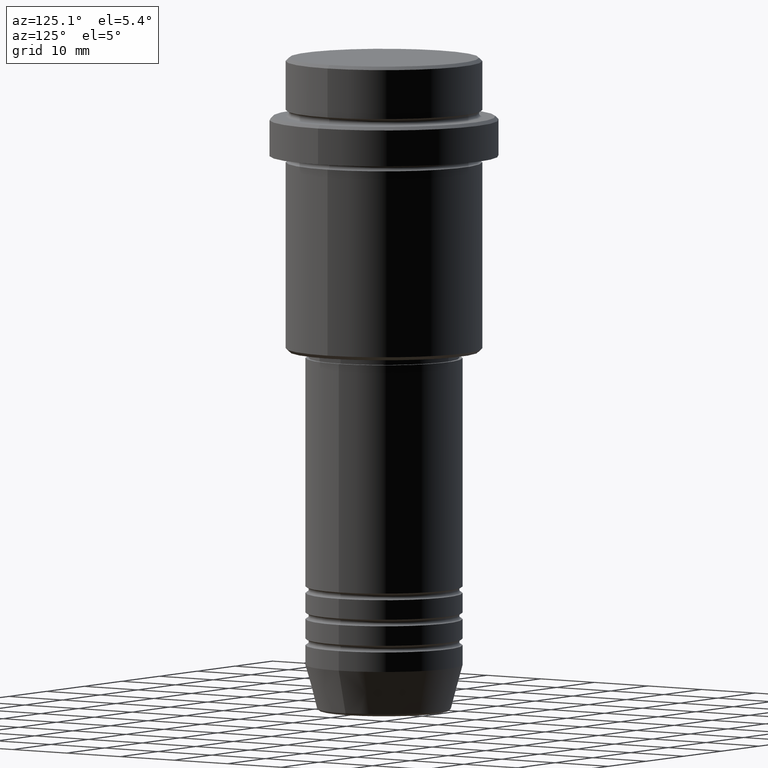
[diagram: clean part render]
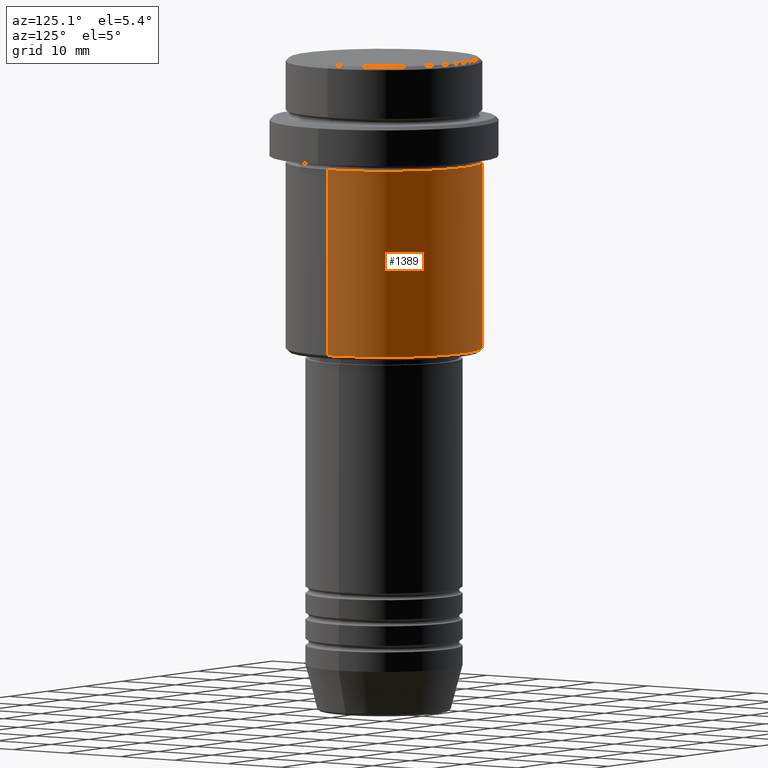
[diagram: same view with one face highlighted and labeled with its STEP entity id]
A machine part, auxiliary view. The second image highlights one B-rep face of the part: STEP entity #1389.
In plain terms, the highlighted cylindrical surface (partial cylindrical patch) has radius 15 mm, axis along (-0, -0, 1).
Its self-contained STEP definition (entity closure, byte-faithful):
#5 = AXIS2_PLACEMENT_3D ( 'NONE', #1140, #167, #709 ) ;
#45 = CARTESIAN_POINT ( 'NONE',  ( 15.00000000000000000, 0.000000000000000000, 0.000000000000000000 ) ) ;
#74 = VECTOR ( 'NONE', #86, 1000.000000000000000 ) ;
#86 = DIRECTION ( 'NONE',  ( -0.000000000000000000, -0.000000000000000000, 1.000000000000000000 ) ) ;
#109 = AXIS2_PLACEMENT_3D ( 'NONE', #704, #1049, #815 ) ;
#124 = CIRCLE ( 'NONE', #5, 15.00000000000000000 ) ;
#140 = VERTEX_POINT ( 'NONE', #174 ) ;
#167 = DIRECTION ( 'NONE',  ( -0.000000000000000000, -0.000000000000000000, 1.000000000000000000 ) ) ;
#174 = CARTESIAN_POINT ( 'NONE',  ( 15.00000000000000178, 0.000000000000000000, -16.00000000000000000 ) ) ;
#244 = VERTEX_POINT ( 'NONE', #996 ) ;
#252 = AXIS2_PLACEMENT_3D ( 'NONE', #656, #1415, #1317 ) ;
#358 = ORIENTED_EDGE ( 'NONE', *, *, #560, .T. ) ;
#411 = CYLINDRICAL_SURFACE ( 'NONE', #109, 15.00000000000000000 ) ;
#418 = ORIENTED_EDGE ( 'NONE', *, *, #883, .F. ) ;
#543 = VERTEX_POINT ( 'NONE', #1148 ) ;
#560 = EDGE_CURVE ( 'NONE', #1211, #543, #124, .T. ) ;
#628 = CIRCLE ( 'NONE', #252, 15.00000000000000178 ) ;
#656 = CARTESIAN_POINT ( 'NONE',  ( 0.000000000000000000, 0.000000000000000000, -16.00000000000000000 ) ) ;
#700 = LINE ( 'NONE', #45, #955 ) ;
#704 = CARTESIAN_POINT ( 'NONE',  ( 0.000000000000000000, 0.000000000000000000, 0.000000000000000000 ) ) ;
#709 = DIRECTION ( 'NONE',  ( -1.000000000000000000, 0.000000000000000000, 0.000000000000000000 ) ) ;
#748 = EDGE_CURVE ( 'NONE', #543, #244, #848, .T. ) ;
#815 = DIRECTION ( 'NONE',  ( 1.000000000000000000, 0.000000000000000000, 0.000000000000000000 ) ) ;
#848 = LINE ( 'NONE', #970, #74 ) ;
#883 = EDGE_CURVE ( 'NONE', #140, #244, #628, .T. ) ;
#955 = VECTOR ( 'NONE', #1264, 1000.000000000000000 ) ;
#960 = EDGE_CURVE ( 'NONE', #1211, #140, #700, .T. ) ;
#970 = CARTESIAN_POINT ( 'NONE',  ( -15.00000000000000000, 1.836970198721029589E-15, 0.000000000000000000 ) ) ;
#985 = ORIENTED_EDGE ( 'NONE', *, *, #748, .T. ) ;
#996 = CARTESIAN_POINT ( 'NONE',  ( -15.00000000000000355, 1.836970198721029983E-15, -16.00000000000000000 ) ) ;
#1049 = DIRECTION ( 'NONE',  ( -0.000000000000000000, -0.000000000000000000, 1.000000000000000000 ) ) ;
#1140 = CARTESIAN_POINT ( 'NONE',  ( 0.000000000000000000, 0.000000000000000000, -44.49999999999998579 ) ) ;
#1148 = CARTESIAN_POINT ( 'NONE',  ( -15.00000000000000000, 1.836970198721029589E-15, -44.49999999999998579 ) ) ;
#1211 = VERTEX_POINT ( 'NONE', #1243 ) ;
#1232 = ORIENTED_EDGE ( 'NONE', *, *, #960, .F. ) ;
#1243 = CARTESIAN_POINT ( 'NONE',  ( 15.00000000000000000, 0.000000000000000000, -44.49999999999998579 ) ) ;
#1264 = DIRECTION ( 'NONE',  ( -0.000000000000000000, -0.000000000000000000, 1.000000000000000000 ) ) ;
#1267 = FACE_OUTER_BOUND ( 'NONE', #1349, .T. ) ;
#1317 = DIRECTION ( 'NONE',  ( 1.000000000000000000, 0.000000000000000000, 0.000000000000000000 ) ) ;
#1349 = EDGE_LOOP ( 'NONE', ( #358, #985, #418, #1232 ) ) ;
#1389 = ADVANCED_FACE ( 'NONE', ( #1267 ), #411, .T. ) ;
#1415 = DIRECTION ( 'NONE',  ( -0.000000000000000000, -0.000000000000000000, 1.000000000000000000 ) ) ;